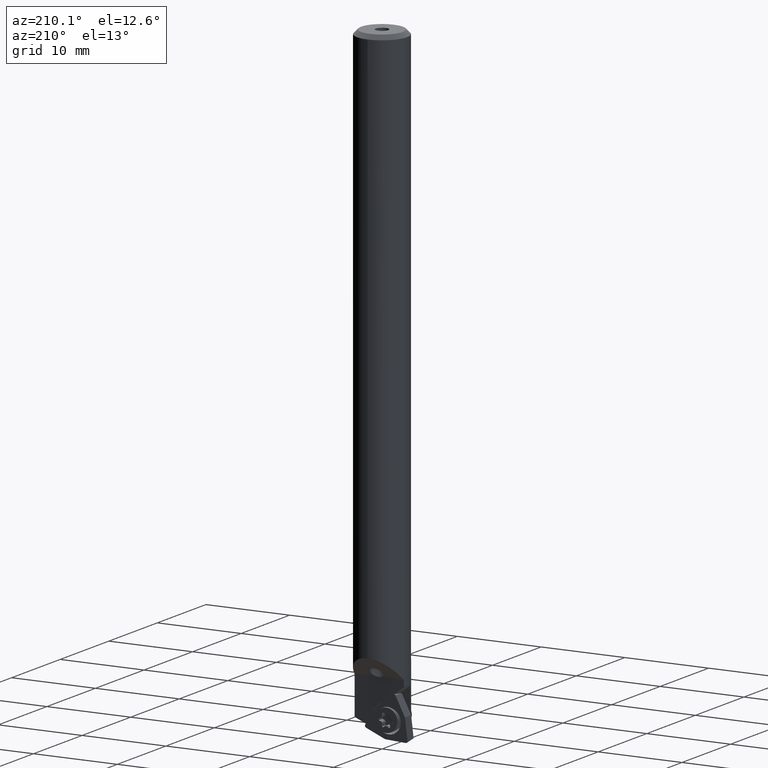
[diagram: clean part render]
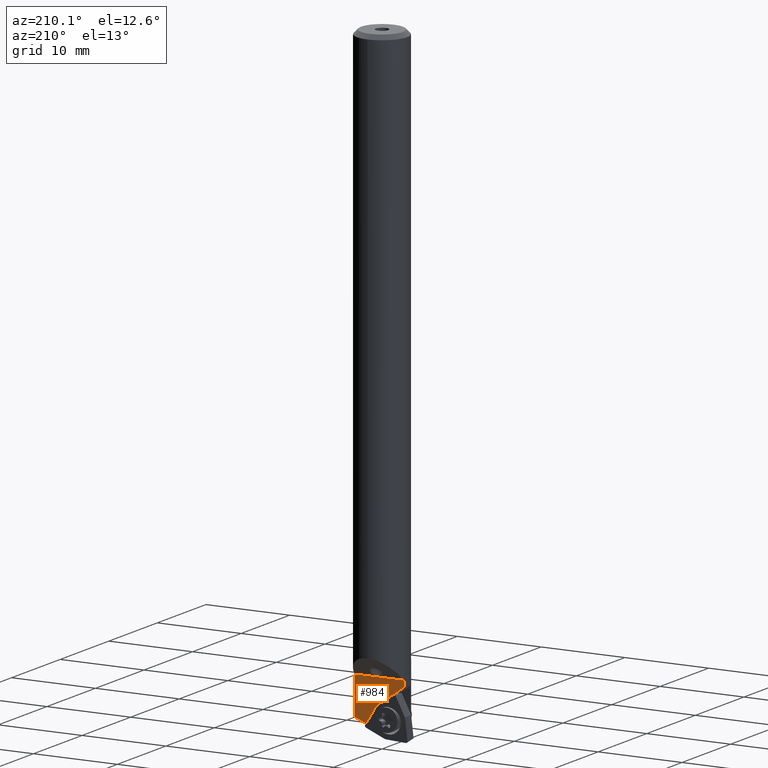
[diagram: same view with one face highlighted and labeled with its STEP entity id]
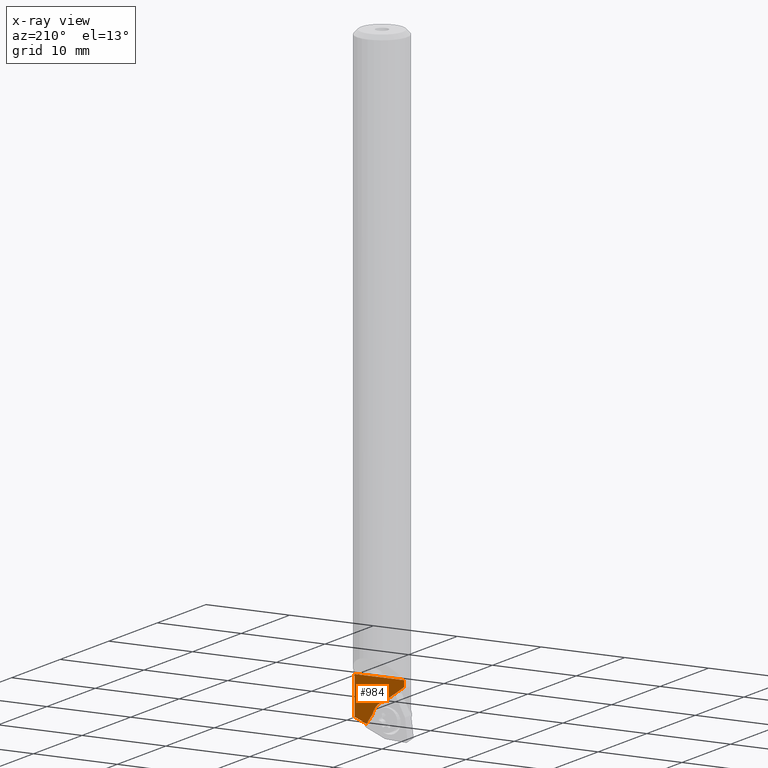
[diagram: x-ray of the same camera — body ghosted, the highlighted face saturated]
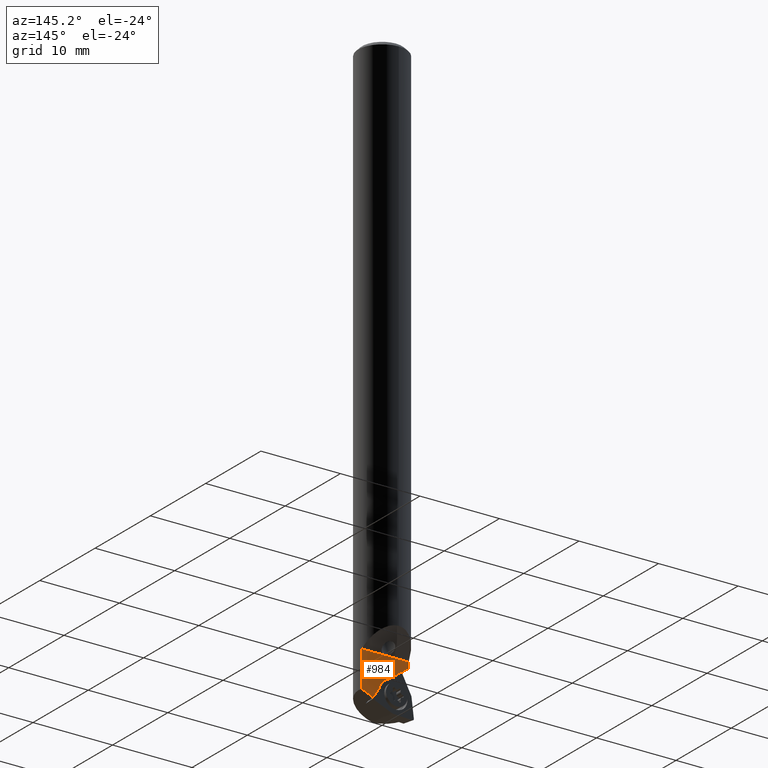
[diagram: same view with one face highlighted and labeled with its STEP entity id]
A machine part, auxiliary view. The second image highlights one B-rep face of the part: STEP entity #984.
The next image is the same camera in x-ray: the body ghosted, the highlighted face saturated — about 0% of this face is hidden behind the body in this view.
A second angle (auxiliary view) of the same face is appended — the face is thin or edge-on in the first view.
In plain terms, the highlighted planar face has unit normal (0, 1, 0).
Its self-contained STEP definition (entity closure, byte-faithful):
#652=EDGE_CURVE('NONE',#1246,#924,#1681,.T.);
#682=EDGE_CURVE('NONE',#1246,#1072,#1713,.T.);
#688=EDGE_CURVE('NONE',#1072,#1002,#1719,.T.);
#732=VERTEX_POINT('NONE',#1770);
#924=VERTEX_POINT('NONE',#1983);
#932=EDGE_CURVE('NONE',#1002,#1242,#1991,.T.);
#966=EDGE_CURVE('NONE',#1268,#732,#2026,.T.);
#984=ADVANCED_FACE('NONE',(#2047),#2048,.T.);
#1002=VERTEX_POINT('NONE',#2070);
#1040=EDGE_CURVE('NONE',#732,#924,#2111,.T.);
#1072=VERTEX_POINT('NONE',#2147);
#1080=EDGE_CURVE('NONE',#1242,#1268,#2156,.T.);
#1242=VERTEX_POINT('NONE',#2334);
#1246=VERTEX_POINT('NONE',#2339);
#1268=VERTEX_POINT('NONE',#2363);
#1681=CIRCLE('',#2866,2.1);
#1713=LINE('',#2928,#2929);
#1719=LINE('',#2940,#2941);
#1770=CARTESIAN_POINT('',(1.52524159321616,0.55,-73.5654993611171));
#1983=CARTESIAN_POINT('',(0.808443320821902,0.550000000000001,-72.4617268153344));
#1991=LINE('',#3309,#3310);
#2026=LINE('',#3357,#3358);
#2047=FACE_OUTER_BOUND('',#3383,.T.);
#2048=PLANE('',#3384);
#2070=CARTESIAN_POINT('',(-2.94915242061173,0.55,-68.433437030462));
#2111=LINE('',#3476,#3477);
#2147=CARTESIAN_POINT('',(-2.94915242061172,0.55,-69.1628021451641));
#2156=LINE('',#3541,#3542);
#2334=CARTESIAN_POINT('',(2.94915242061172,0.55,-68.433437030462));
#2339=CARTESIAN_POINT('',(-0.657528101817383,0.550000000000001,-70.8896649319056));
#2363=CARTESIAN_POINT('',(2.94915242061172,0.55,-72.9610850743595));
#2866=AXIS2_PLACEMENT_3D('',#4460,#4461,#4462);
#2928=CARTESIAN_POINT('',(-0.48700040892751,0.55,-71.0181667655375));
#2929=VECTOR('',#4490,1000.0);
#2940=CARTESIAN_POINT('',(-2.94915242061173,0.55,17.8735926305015));
#2941=VECTOR('',#4493,1000.0);
#3309=CARTESIAN_POINT('',(-3.0,0.55,-68.433437030462));
#3310=VECTOR('',#4856,1000.0);
#3357=CARTESIAN_POINT('',(-0.858196446337212,0.55,-74.5772087849035));
#3358=VECTOR('',#4885,1000.0);
#3383=EDGE_LOOP('',(#4918,#4919,#4920,#4921,#4922,#4923,#4924));
#3384=AXIS2_PLACEMENT_3D('',#4925,#4926,#4927);
#3476=CARTESIAN_POINT('',(2.97827373693409,0.55,-75.8029726505248));
#3477=VECTOR('',#5006,1000.0);
#3541=CARTESIAN_POINT('',(2.94915242061173,0.55,17.8735926305015));
#3542=VECTOR('',#5066,1000.0);
#4460=CARTESIAN_POINT('',(-1.244,0.55,-72.90611));
#4461=DIRECTION('',(0.0,1.0,0.0));
#4462=DIRECTION('',(0.0,0.0,-1.0));
#4490=DIRECTION('',(-0.798635510047292,0.0,0.60181502315205));
#4493=DIRECTION('',(0.0,-0.0,1.0));
#4856=DIRECTION('',(1.0,0.0,0.0));
#4885=DIRECTION('',(-0.920504853452441,0.0,-0.390731128489271));
#4918=ORIENTED_EDGE('',*,*,#688,.T.);
#4919=ORIENTED_EDGE('',*,*,#932,.T.);
#4920=ORIENTED_EDGE('',*,*,#1080,.T.);
#4921=ORIENTED_EDGE('',*,*,#966,.T.);
#4922=ORIENTED_EDGE('',*,*,#1040,.T.);
#4923=ORIENTED_EDGE('',*,*,#652,.F.);
#4924=ORIENTED_EDGE('',*,*,#682,.T.);
#4925=CARTESIAN_POINT('',(-6.744,0.55,-77.70611));
#4926=DIRECTION('',(0.0,1.0,0.0));
#4927=DIRECTION('',(0.0,0.0,-1.0));
#5006=DIRECTION('',(-0.544639035015025,0.0,0.838670567945426));
#5066=DIRECTION('',(0.0,0.0,-1.0));